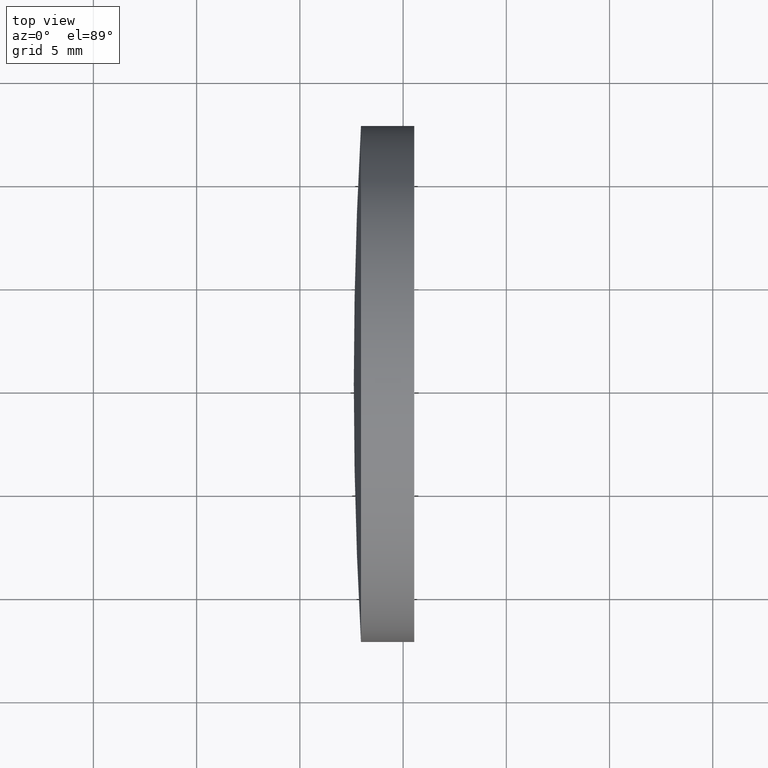
[diagram: clean part render]
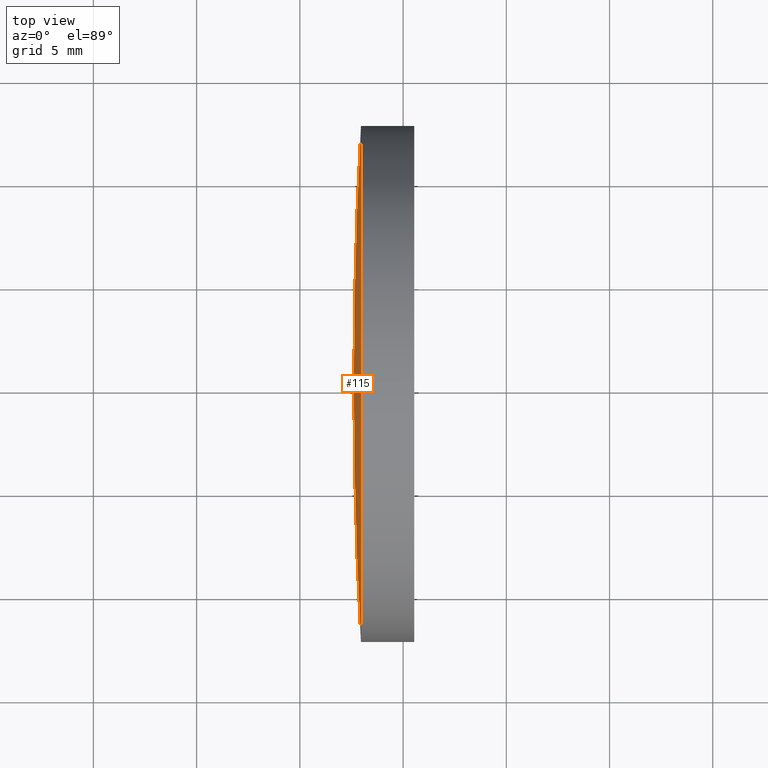
[diagram: same view with one face highlighted and labeled with its STEP entity id]
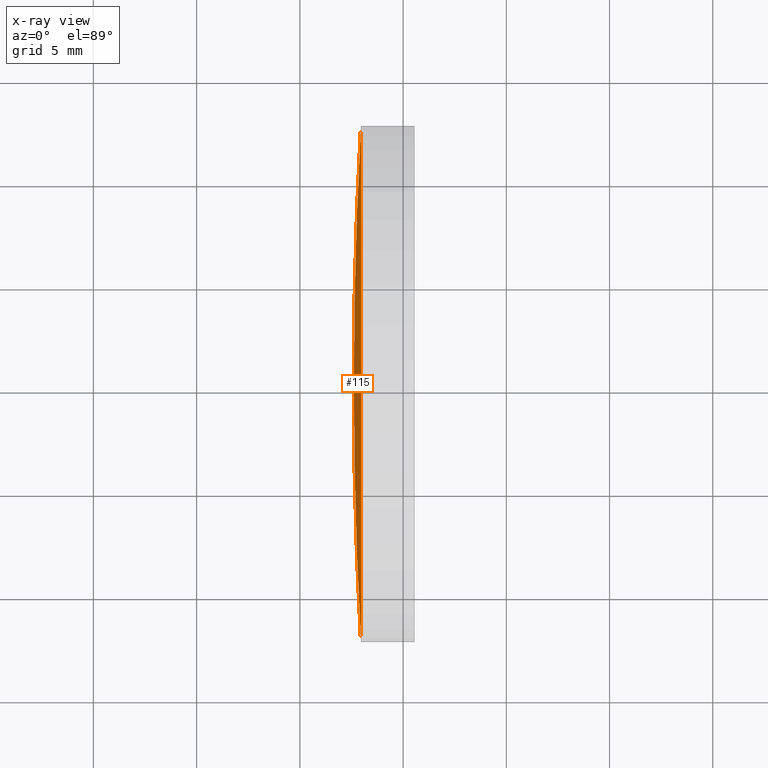
[diagram: x-ray of the same camera — body ghosted, the highlighted face saturated]
A machine part, top view. The second image highlights one B-rep face of the part: STEP entity #115.
The next image is the same camera in x-ray: the body ghosted, the highlighted face saturated — about 0% of this face is hidden behind the body in this view.
In plain terms, the highlighted spherical surface has radius 225 mm.
Its self-contained STEP definition (entity closure, byte-faithful):
#6 = CIRCLE ( 'NONE', #117, 225.0000000000000300 ) ;
#16 = AXIS2_PLACEMENT_3D ( 'NONE', #127, #26, #36 ) ;
#25 = CIRCLE ( 'NONE', #110, 12.50000000000003200 ) ;
#26 = DIRECTION ( 'NONE',  ( -0.0000000000000000000, 0.0000000000000000000, 1.000000000000000000 ) ) ;
#30 = EDGE_CURVE ( 'NONE', #52, #32, #6, .T. ) ;
#32 = VERTEX_POINT ( 'NONE', #176 ) ;
#34 = DIRECTION ( 'NONE',  ( -0.0000000000000000000, 0.0000000000000000000, -1.000000000000000000 ) ) ;
#36 = DIRECTION ( 'NONE',  ( 1.000000000000000000, 0.0000000000000000000, 0.0000000000000000000 ) ) ;
#46 = FACE_OUTER_BOUND ( 'NONE', #167, .T. ) ;
#50 = DIRECTION ( 'NONE',  ( 1.110223024625153800E-015, -1.000000000000000000, 0.0000000000000000000 ) ) ;
#51 = EDGE_CURVE ( 'NONE', #177, #32, #111, .T. ) ;
#52 = VERTEX_POINT ( 'NONE', #124 ) ;
#62 = SPHERICAL_SURFACE ( 'NONE', #121, 225.0000000000000300 ) ;
#65 = EDGE_CURVE ( 'NONE', #52, #177, #25, .T. ) ;
#69 = ORIENTED_EDGE ( 'NONE', *, *, #65, .T. ) ;
#101 = ORIENTED_EDGE ( 'NONE', *, *, #51, .T. ) ;
#106 = DIRECTION ( 'NONE',  ( -1.000000000000000000, -6.937607244762875000E-016, -0.0000000000000000000 ) ) ;
#109 = CARTESIAN_POINT ( 'NONE',  ( 347.6121936992760800, 65.21684047094009900, 0.0000000000000000000 ) ) ;
#110 = AXIS2_PLACEMENT_3D ( 'NONE', #157, #106, #50 ) ;
#111 = CIRCLE ( 'NONE', #16, 224.9999999999999700 ) ;
#115 = ADVANCED_FACE ( 'NONE', ( #46 ), #62, .T. ) ;
#117 = AXIS2_PLACEMENT_3D ( 'NONE', #109, #143, #142 ) ;
#121 = AXIS2_PLACEMENT_3D ( 'NONE', #173, #34, #141 ) ;
#124 = CARTESIAN_POINT ( 'NONE',  ( 122.9596842541332500, 52.71684047093991400, -1.530808498934197000E-015 ) ) ;
#127 = CARTESIAN_POINT ( 'NONE',  ( 347.6121936992760800, 65.21684047094009900, 0.0000000000000000000 ) ) ;
#128 = CARTESIAN_POINT ( 'NONE',  ( 122.9596842541332500, 77.71684047094036900, 0.0000000000000000000 ) ) ;
#141 = DIRECTION ( 'NONE',  ( -7.401486830834376300E-016, 1.000000000000000000, 0.0000000000000000000 ) ) ;
#142 = DIRECTION ( 'NONE',  ( 0.0000000000000000000, 1.000000000000000000, 1.224646799147353200E-016 ) ) ;
#143 = DIRECTION ( 'NONE',  ( -8.496118506040342700E-032, 1.224646799147353200E-016, -1.000000000000000000 ) ) ;
#157 = CARTESIAN_POINT ( 'NONE',  ( 122.9596842541332500, 65.21684047094032600, 0.0000000000000000000 ) ) ;
#167 = EDGE_LOOP ( 'NONE', ( #172, #69, #101 ) ) ;
#172 = ORIENTED_EDGE ( 'NONE', *, *, #30, .F. ) ;
#173 = CARTESIAN_POINT ( 'NONE',  ( 347.6121936992760800, 65.21684047094009900, 0.0000000000000000000 ) ) ;
#176 = CARTESIAN_POINT ( 'NONE',  ( 122.6121936992760600, 65.21684047093997100, 0.0000000000000000000 ) ) ;
#177 = VERTEX_POINT ( 'NONE', #128 ) ;